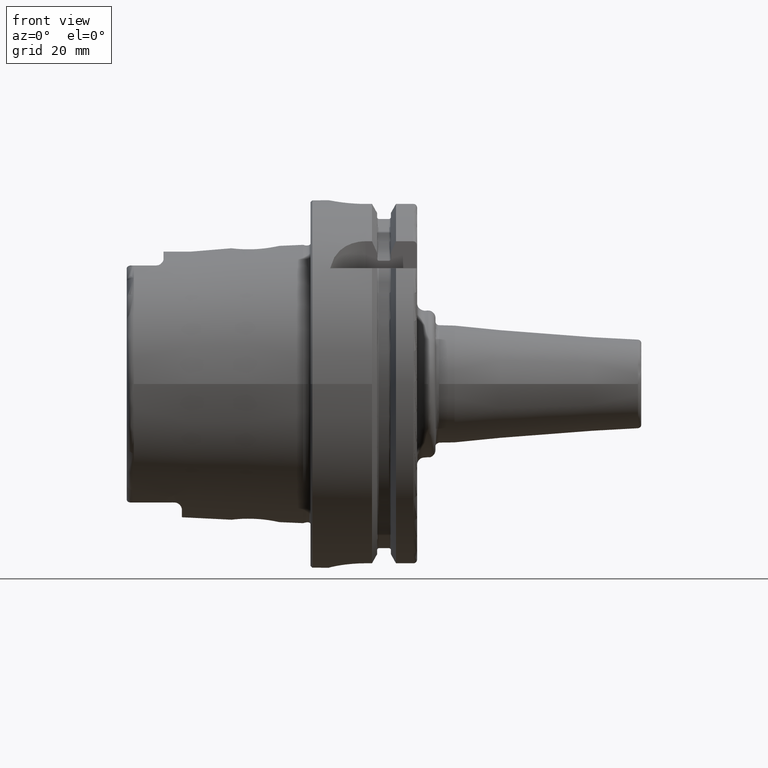
[diagram: clean part render]
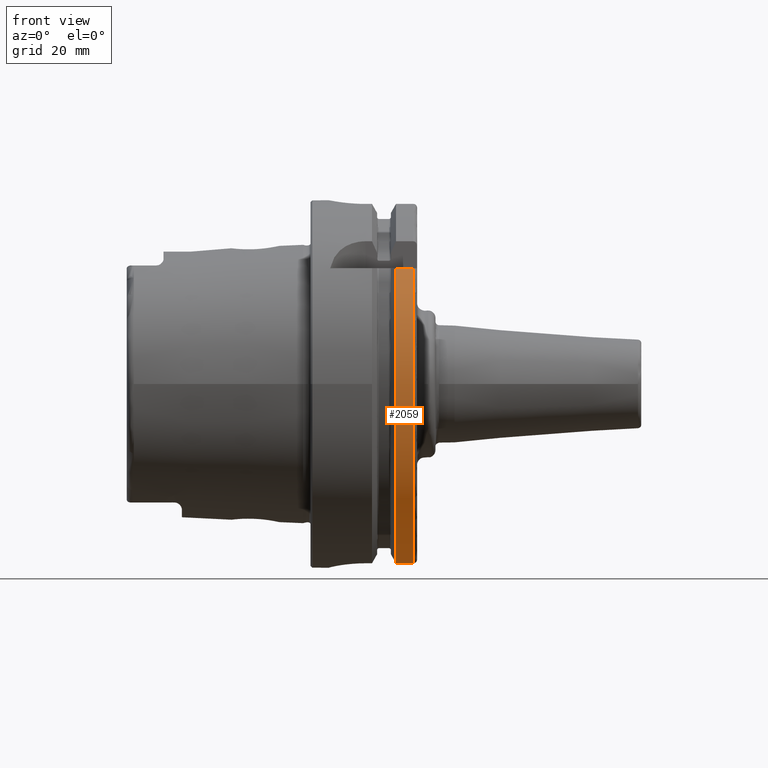
[diagram: same view with one face highlighted and labeled with its STEP entity id]
A machine part, front view. The second image highlights one B-rep face of the part: STEP entity #2059.
In plain terms, the highlighted cylindrical surface (partial cylindrical patch) has radius 50 mm, axis along (1, 0, 0).
Its self-contained STEP definition (entity closure, byte-faithful):
#196=CYLINDRICAL_SURFACE('',#2289,50.);
#275=FACE_OUTER_BOUND('',#406,.T.);
#406=EDGE_LOOP('',(#1704,#1705,#1706,#1707));
#522=LINE('',#4036,#628);
#540=LINE('',#4245,#646);
#628=VECTOR('',#2682,10.);
#646=VECTOR('',#2756,10.);
#756=CIRCLE('',#2286,50.);
#758=CIRCLE('',#2290,50.);
#939=VERTEX_POINT('',#4031);
#940=VERTEX_POINT('',#4035);
#972=VERTEX_POINT('',#4233);
#973=VERTEX_POINT('',#4244);
#1185=EDGE_CURVE('',#940,#939,#522,.T.);
#1233=EDGE_CURVE('',#973,#972,#540,.T.);
#1247=EDGE_CURVE('',#940,#972,#756,.T.);
#1250=EDGE_CURVE('',#939,#973,#758,.T.);
#1704=ORIENTED_EDGE('',*,*,#1185,.T.);
#1705=ORIENTED_EDGE('',*,*,#1250,.T.);
#1706=ORIENTED_EDGE('',*,*,#1233,.T.);
#1707=ORIENTED_EDGE('',*,*,#1247,.F.);
#2059=ADVANCED_FACE('',(#275),#196,.T.);
#2286=AXIS2_PLACEMENT_3D('',#4303,#2777,#2778);
#2289=AXIS2_PLACEMENT_3D('',#4308,#2784,#2785);
#2290=AXIS2_PLACEMENT_3D('',#4309,#2786,#2787);
#2682=DIRECTION('',(-1.,0.,0.));
#2756=DIRECTION('',(1.,0.,0.));
#2777=DIRECTION('center_axis',(1.,0.,0.));
#2778=DIRECTION('ref_axis',(0.,0.,-1.));
#2784=DIRECTION('center_axis',(1.,0.,0.));
#2785=DIRECTION('ref_axis',(0.,-0.94483222014474,-0.327554691275153));
#2786=DIRECTION('center_axis',(1.,0.,0.));
#2787=DIRECTION('ref_axis',(0.,0.,-1.));
#4031=CARTESIAN_POINT('',(23.2620290209214,-38.8297566307078,31.5));
#4035=CARTESIAN_POINT('',(28.,-38.8297566307078,31.5));
#4036=CARTESIAN_POINT('',(25.6310145104607,-38.8297566307078,31.5));
#4233=CARTESIAN_POINT('',(28.,-11.,-48.7749935930288));
#4244=CARTESIAN_POINT('',(23.2620290209214,-11.,-48.7749935930288));
#4245=CARTESIAN_POINT('',(25.6310145104607,-11.,-48.7749935930288));
#4303=CARTESIAN_POINT('Origin',(28.,0.,0.));
#4308=CARTESIAN_POINT('Origin',(25.6310145104607,0.,0.));
#4309=CARTESIAN_POINT('Origin',(23.2620290209214,0.,0.));